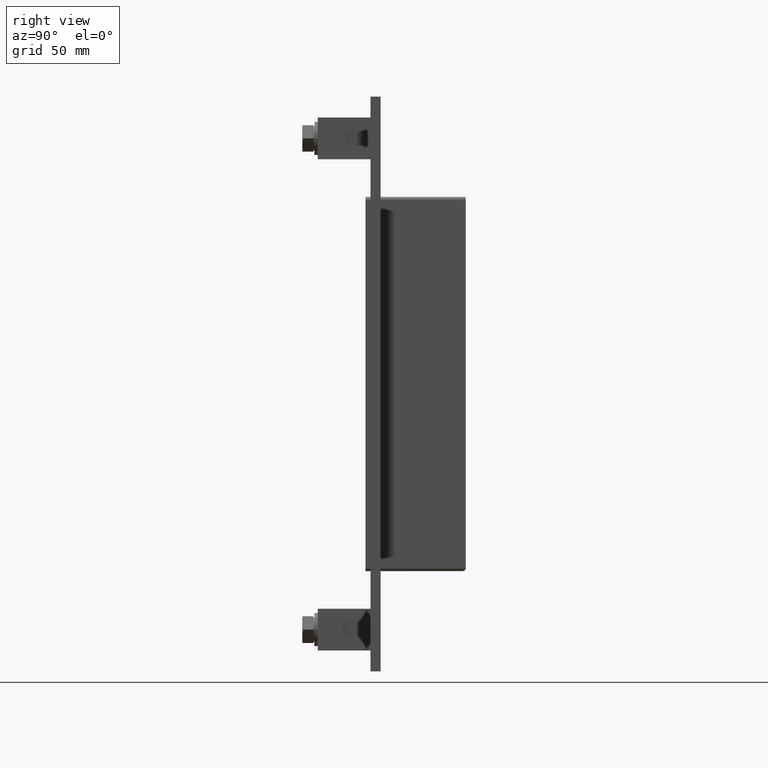
[diagram: clean part render]
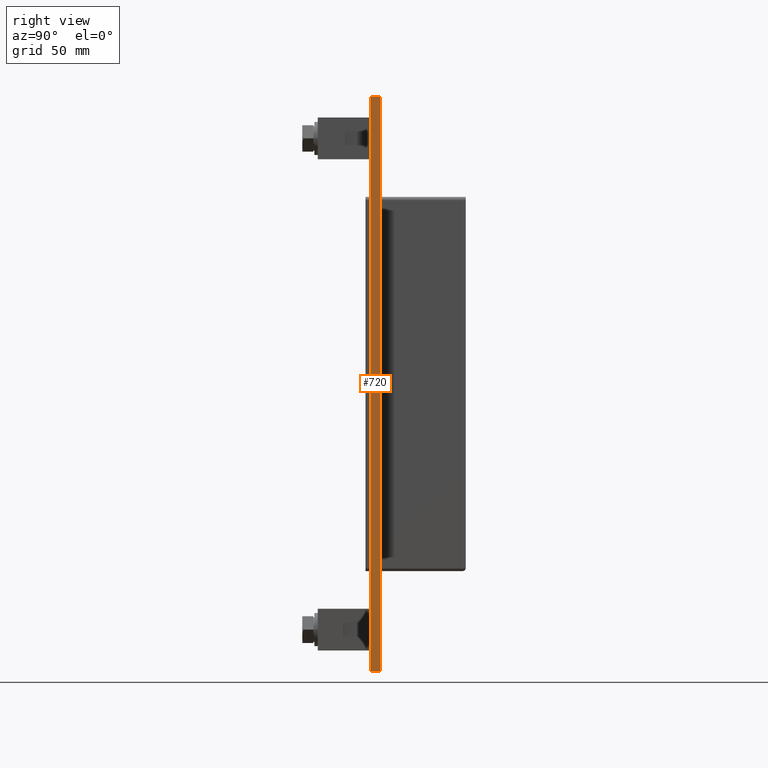
[diagram: same view with one face highlighted and labeled with its STEP entity id]
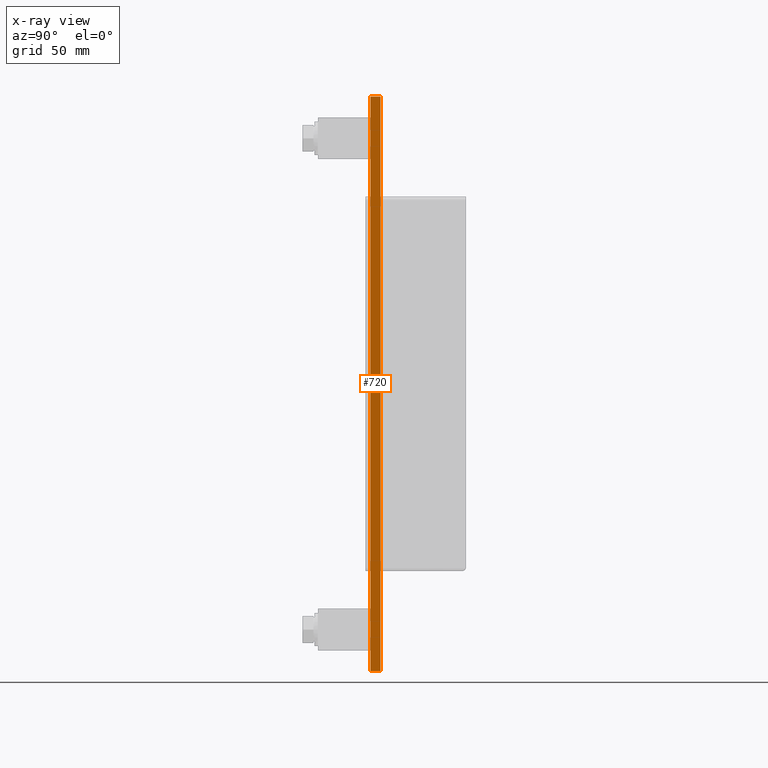
[diagram: x-ray of the same camera — body ghosted, the highlighted face saturated]
A machine part, right view. The second image highlights one B-rep face of the part: STEP entity #720.
The next image is the same camera in x-ray: the body ghosted, the highlighted face saturated — about 0% of this face is hidden behind the body in this view.
In plain terms, the highlighted planar face has unit normal (1, 0, 0).
Its self-contained STEP definition (entity closure, byte-faithful):
#416=CARTESIAN_POINT('',(126.25,6.000000000000001,172.00000000000003));
#417=VERTEX_POINT('',#416);
#424=CARTESIAN_POINT('',(126.25,6.000000000000001,-172.00000000000003));
#425=VERTEX_POINT('',#424);
#426=CARTESIAN_POINT('',(126.24999999999999,6.000000000000001,172.00000000000003));
#427=DIRECTION('',(0.0,0.0,-1.0));
#428=VECTOR('',#427,344.00000000000006);
#429=LINE('',#426,#428);
#430=EDGE_CURVE('',#417,#425,#429,.T.);
#544=CARTESIAN_POINT('',(126.24999999999999,0.0,172.00000000000003));
#545=VERTEX_POINT('',#544);
#560=CARTESIAN_POINT('',(126.24999999999999,0.0,-172.0));
#561=VERTEX_POINT('',#560);
#568=CARTESIAN_POINT('',(126.24999999999999,0.0,172.00000000000003));
#569=DIRECTION('',(0.0,0.0,-1.0));
#570=VECTOR('',#569,344.00000000000006);
#571=LINE('',#568,#570);
#572=EDGE_CURVE('',#545,#561,#571,.T.);
#695=CARTESIAN_POINT('',(126.24999999999999,0.0,-172.0));
#696=DIRECTION('',(0.0,1.0,0.0));
#697=VECTOR('',#696,6.000000000000001);
#698=LINE('',#695,#697);
#699=EDGE_CURVE('',#561,#425,#698,.T.);
#704=CARTESIAN_POINT('',(126.24999999999999,0.0,172.00000000000003));
#705=DIRECTION('',(1.0,0.0,0.0));
#706=DIRECTION('',(0.0,0.0,-1.0));
#707=AXIS2_PLACEMENT_3D('',#704,#705,#706);
#708=PLANE('',#707);
#709=ORIENTED_EDGE('',*,*,#572,.T.);
#710=ORIENTED_EDGE('',*,*,#699,.T.);
#711=ORIENTED_EDGE('',*,*,#430,.F.);
#712=CARTESIAN_POINT('',(126.24999999999999,0.0,172.00000000000003));
#713=DIRECTION('',(0.0,1.0,0.0));
#714=VECTOR('',#713,6.000000000000001);
#715=LINE('',#712,#714);
#716=EDGE_CURVE('',#545,#417,#715,.T.);
#717=ORIENTED_EDGE('',*,*,#716,.F.);
#718=EDGE_LOOP('',(#709,#710,#711,#717));
#719=FACE_OUTER_BOUND('',#718,.T.);
#720=ADVANCED_FACE('',(#719),#708,.T.);